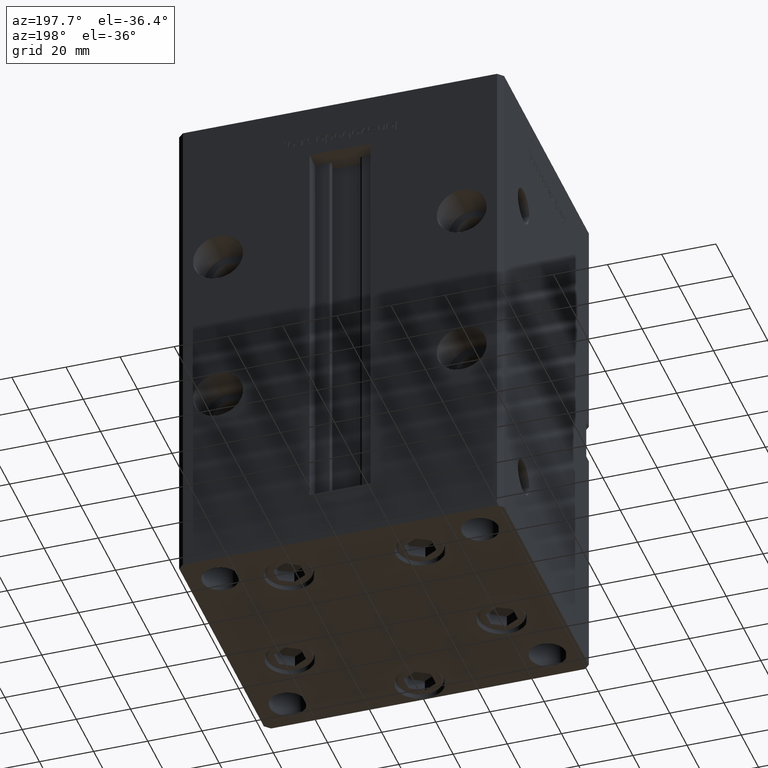
[diagram: clean part render]
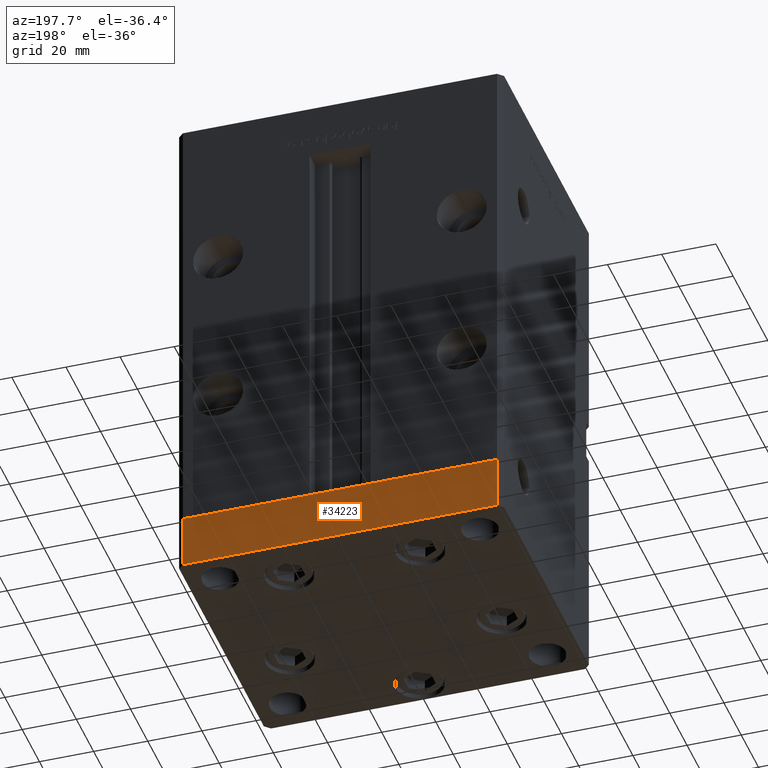
[diagram: same view with one face highlighted and labeled with its STEP entity id]
A machine part, auxiliary view. The second image highlights one B-rep face of the part: STEP entity #34223.
In plain terms, the highlighted planar face has unit normal (-0, 1, 0).
Its self-contained STEP definition (entity closure, byte-faithful):
#3863 = LINE ( 'NONE', #48415, #28062 ) ;
#4763 = ORIENTED_EDGE ( 'NONE', *, *, #11803, .T. ) ;
#5135 = DIRECTION ( 'NONE',  ( 0.000000000000000000, 0.000000000000000000, 1.000000000000000000 ) ) ;
#5399 = LINE ( 'NONE', #49688, #15484 ) ;
#6608 = DIRECTION ( 'NONE',  ( -2.392722035830079958E-16, 1.000000000000000000, 0.000000000000000000 ) ) ;
#8782 = CARTESIAN_POINT ( 'NONE',  ( -57.99999999999999289, 50.99999999999997868, 0.000000000000000000 ) ) ;
#10649 = VERTEX_POINT ( 'NONE', #8782 ) ;
#11155 = EDGE_CURVE ( 'NONE', #42308, #39564, #12866, .T. ) ;
#11803 = EDGE_CURVE ( 'NONE', #39564, #10649, #39631, .T. ) ;
#12866 = LINE ( 'NONE', #16096, #51399 ) ;
#15484 = VECTOR ( 'NONE', #5135, 1000.000000000000000 ) ;
#15697 = PLANE ( 'NONE',  #49588 ) ;
#16096 = CARTESIAN_POINT ( 'NONE',  ( 57.99999999999993605, 51.00000000000000711, -20.00000000000000000 ) ) ;
#19312 = ORIENTED_EDGE ( 'NONE', *, *, #11155, .T. ) ;
#19487 = DIRECTION ( 'NONE',  ( 0.000000000000000000, 0.000000000000000000, 1.000000000000000000 ) ) ;
#22305 = VECTOR ( 'NONE', #19487, 1000.000000000000000 ) ;
#23233 = CARTESIAN_POINT ( 'NONE',  ( 57.99999999999993605, 51.00000000000000711, -20.00000000000000000 ) ) ;
#23235 = FACE_OUTER_BOUND ( 'NONE', #33028, .T. ) ;
#23750 = CARTESIAN_POINT ( 'NONE',  ( 57.99999999999993605, 51.00000000000000711, -20.00000000000000000 ) ) ;
#25687 = CARTESIAN_POINT ( 'NONE',  ( -57.99999999999999289, 50.99999999999997868, -20.00000000000000000 ) ) ;
#27661 = CARTESIAN_POINT ( 'NONE',  ( 57.99999999999993605, 51.00000000000000711, 0.000000000000000000 ) ) ;
#27757 = EDGE_CURVE ( 'NONE', #34799, #10649, #3863, .T. ) ;
#28062 = VECTOR ( 'NONE', #31802, 1000.000000000000000 ) ;
#31582 = CARTESIAN_POINT ( 'NONE',  ( -57.99999999999999289, 50.99999999999997868, -20.00000000000000000 ) ) ;
#31802 = DIRECTION ( 'NONE',  ( -1.000000000000000000, -2.392722035830079958E-16, 0.000000000000000000 ) ) ;
#32489 = DIRECTION ( 'NONE',  ( -1.000000000000000000, -2.392722035830079958E-16, 0.000000000000000000 ) ) ;
#33028 = EDGE_LOOP ( 'NONE', ( #35728, #52737, #19312, #4763 ) ) ;
#34223 = ADVANCED_FACE ( 'NONE', ( #23235 ), #15697, .T. ) ;
#34799 = VERTEX_POINT ( 'NONE', #27661 ) ;
#35728 = ORIENTED_EDGE ( 'NONE', *, *, #27757, .F. ) ;
#39564 = VERTEX_POINT ( 'NONE', #25687 ) ;
#39631 = LINE ( 'NONE', #31582, #22305 ) ;
#40947 = EDGE_CURVE ( 'NONE', #42308, #34799, #5399, .T. ) ;
#42308 = VERTEX_POINT ( 'NONE', #23233 ) ;
#48415 = CARTESIAN_POINT ( 'NONE',  ( 57.99999999999993605, 51.00000000000000711, 0.000000000000000000 ) ) ;
#49588 = AXIS2_PLACEMENT_3D ( 'NONE', #23750, #6608, #51689 ) ;
#49688 = CARTESIAN_POINT ( 'NONE',  ( 57.99999999999993605, 51.00000000000000711, -20.00000000000000000 ) ) ;
#51399 = VECTOR ( 'NONE', #32489, 1000.000000000000000 ) ;
#51689 = DIRECTION ( 'NONE',  ( -1.000000000000000000, -2.392722035830079958E-16, 0.000000000000000000 ) ) ;
#52737 = ORIENTED_EDGE ( 'NONE', *, *, #40947, .F. ) ;